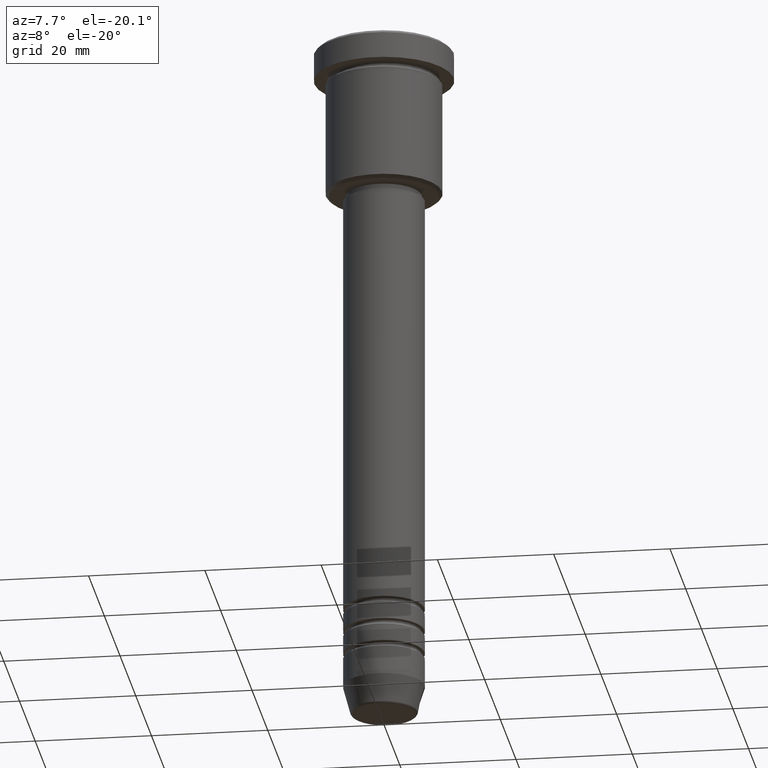
[diagram: clean part render]
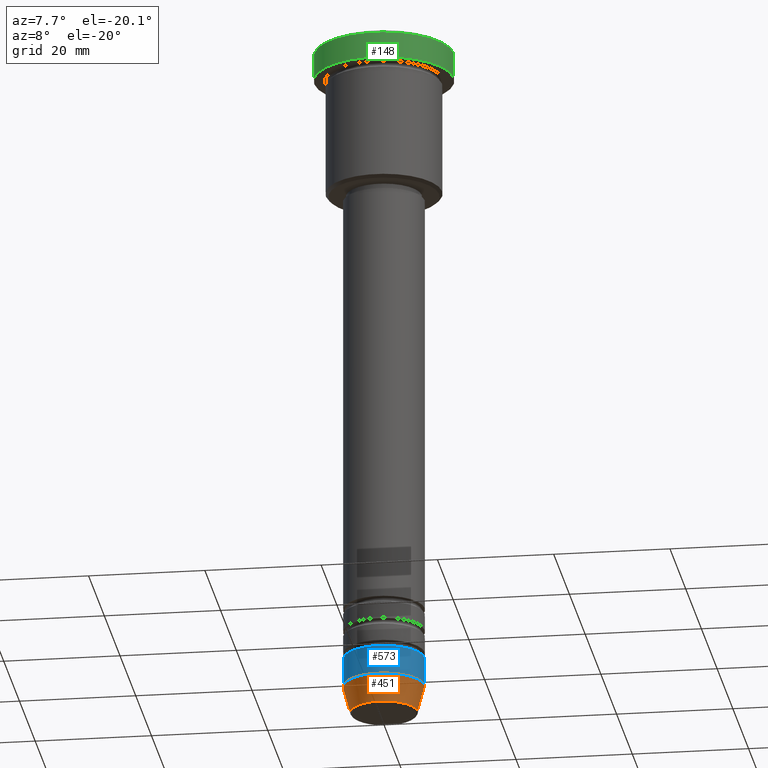
[diagram: same view with three faces highlighted in distinct colors, each labeled with its STEP entity id]
A machine part, auxiliary view with three faces highlighted in distinct colors.
Their STEP definitions:

[orange] entity #451 — the highlighted conical surface has half-angle 15 deg.
#32 = CIRCLE ( 'NONE', #294, 5.759553456999433330 ) ;
#39 = VERTEX_POINT ( 'NONE', #691 ) ;
#82 = AXIS2_PLACEMENT_3D ( 'NONE', #1063, #895, #972 ) ;
#127 = ORIENTED_EDGE ( 'NONE', *, *, #906, .F. ) ;
#144 = EDGE_CURVE ( 'NONE', #339, #978, #206, .T. ) ;
#149 = CARTESIAN_POINT ( 'NONE',  ( 7.000000000000000888, 0.000000000000000000, -114.9999999999999858 ) ) ;
#150 = ORIENTED_EDGE ( 'NONE', *, *, #1074, .F. ) ;
#174 = VECTOR ( 'NONE', #687, 1000.000000000000000 ) ;
#188 = DIRECTION ( 'NONE',  ( 1.000000000000000000, 0.000000000000000000, 0.000000000000000000 ) ) ;
#206 = LINE ( 'NONE', #858, #402 ) ;
#294 = AXIS2_PLACEMENT_3D ( 'NONE', #613, #353, #986 ) ;
#339 = VERTEX_POINT ( 'NONE', #400 ) ;
#353 = DIRECTION ( 'NONE',  ( -0.000000000000000000, -0.000000000000000000, 1.000000000000000000 ) ) ;
#383 = DIRECTION ( 'NONE',  ( 0.2588190451025213501, 0.000000000000000000, 0.9659258262890680902 ) ) ;
#400 = CARTESIAN_POINT ( 'NONE',  ( 5.759553456999433330, 0.000000000000000000, -119.6294095225512564 ) ) ;
#402 = VECTOR ( 'NONE', #383, 1000.000000000000000 ) ;
#451 = ADVANCED_FACE ( 'NONE', ( #504 ), #597, .T. ) ;
#475 = ORIENTED_EDGE ( 'NONE', *, *, #144, .T. ) ;
#504 = FACE_OUTER_BOUND ( 'NONE', #560, .T. ) ;
#536 = CARTESIAN_POINT ( 'NONE',  ( 0.000000000000000000, 0.000000000000000000, -114.9999999999999858 ) ) ;
#560 = EDGE_LOOP ( 'NONE', ( #127, #1102, #475, #150 ) ) ;
#597 = CONICAL_SURFACE ( 'NONE', #82, 7.000000000000000888, 0.2617993877991500740 ) ;
#607 = CARTESIAN_POINT ( 'NONE',  ( -7.000000000000000888, 8.572527594031474176E-16, -114.9999999999999858 ) ) ;
#613 = CARTESIAN_POINT ( 'NONE',  ( 0.000000000000000000, 0.000000000000000000, -119.6294095225512564 ) ) ;
#687 = DIRECTION ( 'NONE',  ( -0.2588190451025213501, 3.169619151431772337E-17, 0.9659258262890680902 ) ) ;
#691 = CARTESIAN_POINT ( 'NONE',  ( -5.759553456999433330, 7.812973149831950787E-16, -119.6294095225512564 ) ) ;
#749 = CARTESIAN_POINT ( 'NONE',  ( -7.000000000000000888, 8.572527594031474176E-16, -114.9999999999999858 ) ) ;
#796 = VERTEX_POINT ( 'NONE', #749 ) ;
#812 = AXIS2_PLACEMENT_3D ( 'NONE', #536, #1105, #188 ) ;
#858 = CARTESIAN_POINT ( 'NONE',  ( 7.000000000000000888, 0.000000000000000000, -114.9999999999999858 ) ) ;
#895 = DIRECTION ( 'NONE',  ( -0.000000000000000000, -0.000000000000000000, 1.000000000000000000 ) ) ;
#906 = EDGE_CURVE ( 'NONE', #39, #796, #1143, .T. ) ;
#972 = DIRECTION ( 'NONE',  ( 1.000000000000000000, 0.000000000000000000, 0.000000000000000000 ) ) ;
#978 = VERTEX_POINT ( 'NONE', #149 ) ;
#986 = DIRECTION ( 'NONE',  ( 1.000000000000000000, 0.000000000000000000, 0.000000000000000000 ) ) ;
#1022 = CIRCLE ( 'NONE', #812, 7.000000000000000888 ) ;
#1063 = CARTESIAN_POINT ( 'NONE',  ( 0.000000000000000000, 0.000000000000000000, -114.9999999999999858 ) ) ;
#1074 = EDGE_CURVE ( 'NONE', #796, #978, #1022, .T. ) ;
#1102 = ORIENTED_EDGE ( 'NONE', *, *, #1159, .T. ) ;
#1105 = DIRECTION ( 'NONE',  ( -0.000000000000000000, -0.000000000000000000, 1.000000000000000000 ) ) ;
#1143 = LINE ( 'NONE', #607, #174 ) ;
#1159 = EDGE_CURVE ( 'NONE', #39, #339, #32, .T. ) ;

[blue] entity #573 — the highlighted cylindrical surface (partial cylindrical patch) has radius 7 mm, axis along (-0, -0, 1).
#2 = DIRECTION ( 'NONE',  ( 1.000000000000000000, 0.000000000000000000, 0.000000000000000000 ) ) ;
#15 = EDGE_CURVE ( 'NONE', #978, #545, #84, .T. ) ;
#52 = CARTESIAN_POINT ( 'NONE',  ( -7.000000000000000888, 8.572527594031474176E-16, 0.000000000000000000 ) ) ;
#56 = LINE ( 'NONE', #52, #828 ) ;
#84 = LINE ( 'NONE', #726, #593 ) ;
#143 = DIRECTION ( 'NONE',  ( -0.000000000000000000, -0.000000000000000000, 1.000000000000000000 ) ) ;
#149 = CARTESIAN_POINT ( 'NONE',  ( 7.000000000000000888, 0.000000000000000000, -114.9999999999999858 ) ) ;
#158 = CARTESIAN_POINT ( 'NONE',  ( -7.000000000000000000, 8.572527594031473190E-16, -109.9999999999999858 ) ) ;
#161 = CARTESIAN_POINT ( 'NONE',  ( 7.000000000000000000, 0.000000000000000000, -109.9999999999999858 ) ) ;
#188 = DIRECTION ( 'NONE',  ( 1.000000000000000000, 0.000000000000000000, 0.000000000000000000 ) ) ;
#231 = CYLINDRICAL_SURFACE ( 'NONE', #1040, 7.000000000000000888 ) ;
#247 = VERTEX_POINT ( 'NONE', #158 ) ;
#323 = FACE_OUTER_BOUND ( 'NONE', #886, .T. ) ;
#394 = ORIENTED_EDGE ( 'NONE', *, *, #1074, .T. ) ;
#435 = ORIENTED_EDGE ( 'NONE', *, *, #15, .T. ) ;
#482 = CIRCLE ( 'NONE', #1149, 7.000000000000000000 ) ;
#536 = CARTESIAN_POINT ( 'NONE',  ( 0.000000000000000000, 0.000000000000000000, -114.9999999999999858 ) ) ;
#545 = VERTEX_POINT ( 'NONE', #161 ) ;
#573 = ADVANCED_FACE ( 'NONE', ( #323 ), #231, .T. ) ;
#590 = DIRECTION ( 'NONE',  ( -0.000000000000000000, -0.000000000000000000, 1.000000000000000000 ) ) ;
#593 = VECTOR ( 'NONE', #590, 1000.000000000000000 ) ;
#643 = DIRECTION ( 'NONE',  ( -0.000000000000000000, -0.000000000000000000, 1.000000000000000000 ) ) ;
#658 = EDGE_CURVE ( 'NONE', #247, #545, #482, .T. ) ;
#726 = CARTESIAN_POINT ( 'NONE',  ( 7.000000000000000888, 0.000000000000000000, 0.000000000000000000 ) ) ;
#749 = CARTESIAN_POINT ( 'NONE',  ( -7.000000000000000888, 8.572527594031474176E-16, -114.9999999999999858 ) ) ;
#786 = DIRECTION ( 'NONE',  ( -0.000000000000000000, -0.000000000000000000, 1.000000000000000000 ) ) ;
#787 = ORIENTED_EDGE ( 'NONE', *, *, #658, .F. ) ;
#796 = VERTEX_POINT ( 'NONE', #749 ) ;
#812 = AXIS2_PLACEMENT_3D ( 'NONE', #536, #1105, #188 ) ;
#828 = VECTOR ( 'NONE', #786, 1000.000000000000000 ) ;
#886 = EDGE_LOOP ( 'NONE', ( #1091, #394, #435, #787 ) ) ;
#905 = EDGE_CURVE ( 'NONE', #796, #247, #56, .T. ) ;
#967 = CARTESIAN_POINT ( 'NONE',  ( 0.000000000000000000, 0.000000000000000000, 0.000000000000000000 ) ) ;
#978 = VERTEX_POINT ( 'NONE', #149 ) ;
#1022 = CIRCLE ( 'NONE', #812, 7.000000000000000888 ) ;
#1040 = AXIS2_PLACEMENT_3D ( 'NONE', #967, #143, #2 ) ;
#1074 = EDGE_CURVE ( 'NONE', #796, #978, #1022, .T. ) ;
#1091 = ORIENTED_EDGE ( 'NONE', *, *, #905, .F. ) ;
#1100 = CARTESIAN_POINT ( 'NONE',  ( 0.000000000000000000, 0.000000000000000000, -109.9999999999999858 ) ) ;
#1105 = DIRECTION ( 'NONE',  ( -0.000000000000000000, -0.000000000000000000, 1.000000000000000000 ) ) ;
#1106 = DIRECTION ( 'NONE',  ( 1.000000000000000000, 0.000000000000000000, 0.000000000000000000 ) ) ;
#1149 = AXIS2_PLACEMENT_3D ( 'NONE', #1100, #643, #1106 ) ;

[green] entity #148 — the highlighted cylindrical surface (partial cylindrical patch) has radius 12 mm, axis along (-0, -0, 1).
#97 = DIRECTION ( 'NONE',  ( 0.000000000000000000, 0.000000000000000000, -1.000000000000000000 ) ) ;
#105 = AXIS2_PLACEMENT_3D ( 'NONE', #134, #800, #882 ) ;
#134 = CARTESIAN_POINT ( 'NONE',  ( 0.000000000000000000, 0.000000000000000000, -5.000000000000000000 ) ) ;
#142 = DIRECTION ( 'NONE',  ( -0.000000000000000000, -0.000000000000000000, 1.000000000000000000 ) ) ;
#148 = ADVANCED_FACE ( 'NONE', ( #649 ), #197, .T. ) ;
#165 = VERTEX_POINT ( 'NONE', #455 ) ;
#186 = ORIENTED_EDGE ( 'NONE', *, *, #1110, .F. ) ;
#197 = CYLINDRICAL_SURFACE ( 'NONE', #534, 12.00000000000000000 ) ;
#208 = EDGE_CURVE ( 'NONE', #439, #880, #421, .T. ) ;
#258 = VECTOR ( 'NONE', #900, 1000.000000000000000 ) ;
#282 = DIRECTION ( 'NONE',  ( 1.000000000000000000, 0.000000000000000000, 0.000000000000000000 ) ) ;
#380 = EDGE_CURVE ( 'NONE', #698, #439, #774, .T. ) ;
#414 = DIRECTION ( 'NONE',  ( 1.000000000000000000, 0.000000000000000000, 0.000000000000000000 ) ) ;
#421 = CIRCLE ( 'NONE', #980, 12.00000000000000000 ) ;
#425 = CARTESIAN_POINT ( 'NONE',  ( 0.000000000000000000, 0.000000000000000000, -0.5000000000000056621 ) ) ;
#439 = VERTEX_POINT ( 'NONE', #603 ) ;
#455 = CARTESIAN_POINT ( 'NONE',  ( -12.00000000000000000, 1.469576158976823947E-15, -5.000000000000000000 ) ) ;
#460 = CARTESIAN_POINT ( 'NONE',  ( -12.00000000000000000, 1.469576158976823947E-15, 0.000000000000000000 ) ) ;
#534 = AXIS2_PLACEMENT_3D ( 'NONE', #870, #142, #414 ) ;
#544 = LINE ( 'NONE', #460, #258 ) ;
#588 = DIRECTION ( 'NONE',  ( -0.000000000000000000, -0.000000000000000000, 1.000000000000000000 ) ) ;
#603 = CARTESIAN_POINT ( 'NONE',  ( 12.00000000000000000, 0.000000000000000000, -0.5000000000000056621 ) ) ;
#612 = CIRCLE ( 'NONE', #105, 12.00000000000000000 ) ;
#649 = FACE_OUTER_BOUND ( 'NONE', #1158, .T. ) ;
#686 = CARTESIAN_POINT ( 'NONE',  ( 12.00000000000000000, 0.000000000000000000, 0.000000000000000000 ) ) ;
#697 = VECTOR ( 'NONE', #588, 1000.000000000000000 ) ;
#698 = VERTEX_POINT ( 'NONE', #1169 ) ;
#722 = ORIENTED_EDGE ( 'NONE', *, *, #208, .T. ) ;
#759 = ORIENTED_EDGE ( 'NONE', *, *, #993, .T. ) ;
#774 = LINE ( 'NONE', #686, #697 ) ;
#800 = DIRECTION ( 'NONE',  ( -0.000000000000000000, -0.000000000000000000, 1.000000000000000000 ) ) ;
#870 = CARTESIAN_POINT ( 'NONE',  ( 0.000000000000000000, 0.000000000000000000, 0.000000000000000000 ) ) ;
#880 = VERTEX_POINT ( 'NONE', #976 ) ;
#882 = DIRECTION ( 'NONE',  ( 1.000000000000000000, 0.000000000000000000, 0.000000000000000000 ) ) ;
#900 = DIRECTION ( 'NONE',  ( -0.000000000000000000, -0.000000000000000000, 1.000000000000000000 ) ) ;
#976 = CARTESIAN_POINT ( 'NONE',  ( -12.00000000000000000, 1.469576158976823947E-15, -0.5000000000000056621 ) ) ;
#980 = AXIS2_PLACEMENT_3D ( 'NONE', #425, #97, #282 ) ;
#993 = EDGE_CURVE ( 'NONE', #165, #698, #612, .T. ) ;
#1076 = ORIENTED_EDGE ( 'NONE', *, *, #380, .T. ) ;
#1110 = EDGE_CURVE ( 'NONE', #165, #880, #544, .T. ) ;
#1158 = EDGE_LOOP ( 'NONE', ( #186, #759, #1076, #722 ) ) ;
#1169 = CARTESIAN_POINT ( 'NONE',  ( 12.00000000000000000, 0.000000000000000000, -5.000000000000000000 ) ) ;